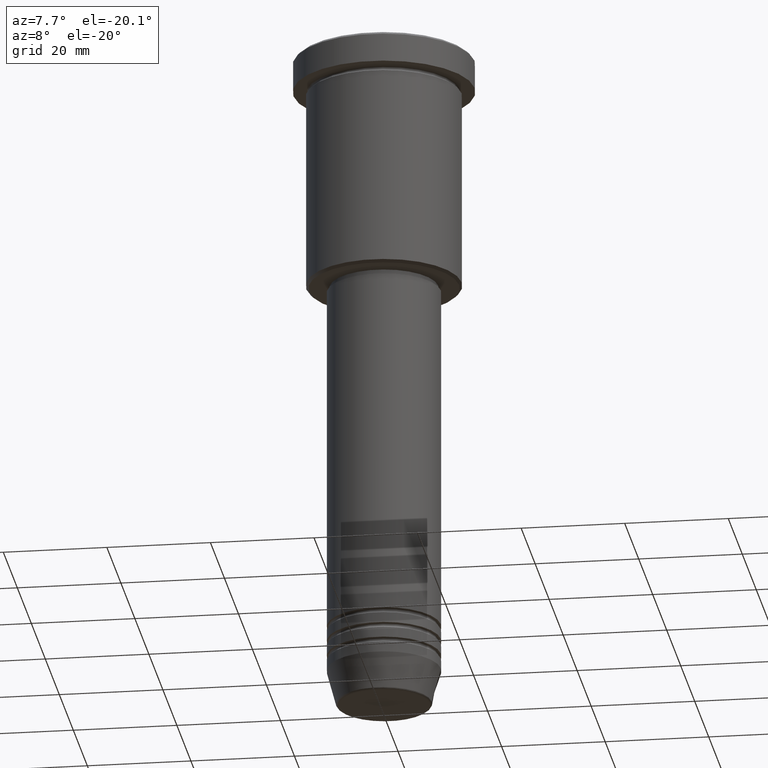
[diagram: clean part render]
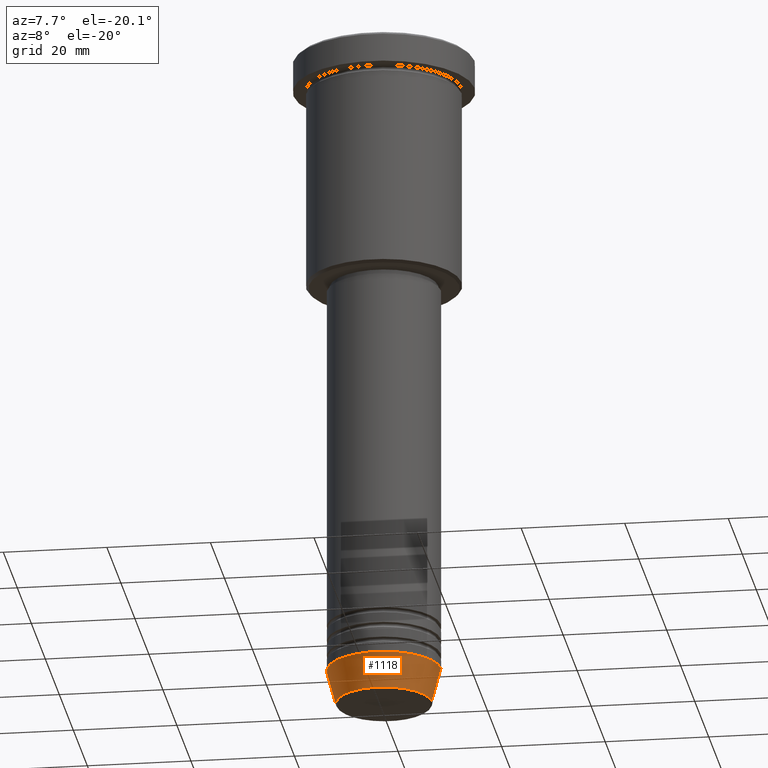
[diagram: same view with one face highlighted and labeled with its STEP entity id]
A machine part, auxiliary view. The second image highlights one B-rep face of the part: STEP entity #1118.
In plain terms, the highlighted conical surface has half-angle 15 deg.
Its self-contained STEP definition (entity closure, byte-faithful):
#9 = ORIENTED_EDGE ( 'NONE', *, *, #601, .F. ) ;
#65 = AXIS2_PLACEMENT_3D ( 'NONE', #1036, #600, #70 ) ;
#70 = DIRECTION ( 'NONE',  ( 1.000000000000000000, 0.000000000000000000, 0.000000000000000000 ) ) ;
#111 = LINE ( 'NONE', #391, #331 ) ;
#146 = VERTEX_POINT ( 'NONE', #556 ) ;
#151 = ORIENTED_EDGE ( 'NONE', *, *, #812, .T. ) ;
#192 = CIRCLE ( 'NONE', #665, 9.223655072137187716 ) ;
#261 = CARTESIAN_POINT ( 'NONE',  ( 11.00000000000000000, 0.000000000000000000, -124.0000000000000000 ) ) ;
#269 = VECTOR ( 'NONE', #830, 1000.000000000000000 ) ;
#298 = VERTEX_POINT ( 'NONE', #1018 ) ;
#327 = EDGE_LOOP ( 'NONE', ( #9, #1149, #151, #787 ) ) ;
#331 = VECTOR ( 'NONE', #677, 1000.000000000000000 ) ;
#361 = VERTEX_POINT ( 'NONE', #735 ) ;
#378 = EDGE_CURVE ( 'NONE', #361, #712, #192, .T. ) ;
#391 = CARTESIAN_POINT ( 'NONE',  ( -11.00000000000000000, 1.347111479062088405E-15, -124.0000000000000000 ) ) ;
#395 = DIRECTION ( 'NONE',  ( -0.000000000000000000, -0.000000000000000000, 1.000000000000000000 ) ) ;
#411 = CONICAL_SURFACE ( 'NONE', #65, 11.00000000000000000, 0.2617993877991500740 ) ;
#519 = LINE ( 'NONE', #261, #269 ) ;
#545 = CIRCLE ( 'NONE', #852, 11.00000000000000000 ) ;
#552 = DIRECTION ( 'NONE',  ( 1.000000000000000000, 0.000000000000000000, 0.000000000000000000 ) ) ;
#556 = CARTESIAN_POINT ( 'NONE',  ( 11.00000000000000000, 0.000000000000000000, -124.0000000000000000 ) ) ;
#557 = DIRECTION ( 'NONE',  ( -0.000000000000000000, -0.000000000000000000, 1.000000000000000000 ) ) ;
#600 = DIRECTION ( 'NONE',  ( -0.000000000000000000, -0.000000000000000000, 1.000000000000000000 ) ) ;
#601 = EDGE_CURVE ( 'NONE', #361, #298, #111, .T. ) ;
#665 = AXIS2_PLACEMENT_3D ( 'NONE', #998, #557, #552 ) ;
#673 = DIRECTION ( 'NONE',  ( 1.000000000000000000, 0.000000000000000000, 0.000000000000000000 ) ) ;
#677 = DIRECTION ( 'NONE',  ( -0.2588190451025213501, 3.169619151431772337E-17, 0.9659258262890680902 ) ) ;
#712 = VERTEX_POINT ( 'NONE', #774 ) ;
#735 = CARTESIAN_POINT ( 'NONE',  ( -9.223655072137187716, 1.238341722557647004E-15, -130.6294095225512422 ) ) ;
#774 = CARTESIAN_POINT ( 'NONE',  ( 9.223655072137187716, 0.000000000000000000, -130.6294095225512422 ) ) ;
#787 = ORIENTED_EDGE ( 'NONE', *, *, #980, .F. ) ;
#812 = EDGE_CURVE ( 'NONE', #712, #146, #519, .T. ) ;
#830 = DIRECTION ( 'NONE',  ( 0.2588190451025213501, 0.000000000000000000, 0.9659258262890680902 ) ) ;
#852 = AXIS2_PLACEMENT_3D ( 'NONE', #859, #395, #673 ) ;
#859 = CARTESIAN_POINT ( 'NONE',  ( 0.000000000000000000, 0.000000000000000000, -124.0000000000000000 ) ) ;
#980 = EDGE_CURVE ( 'NONE', #298, #146, #545, .T. ) ;
#998 = CARTESIAN_POINT ( 'NONE',  ( 0.000000000000000000, 0.000000000000000000, -130.6294095225512422 ) ) ;
#1018 = CARTESIAN_POINT ( 'NONE',  ( -11.00000000000000000, 1.347111479062088405E-15, -124.0000000000000000 ) ) ;
#1036 = CARTESIAN_POINT ( 'NONE',  ( 0.000000000000000000, 0.000000000000000000, -124.0000000000000000 ) ) ;
#1118 = ADVANCED_FACE ( 'NONE', ( #1148 ), #411, .T. ) ;
#1148 = FACE_OUTER_BOUND ( 'NONE', #327, .T. ) ;
#1149 = ORIENTED_EDGE ( 'NONE', *, *, #378, .T. ) ;